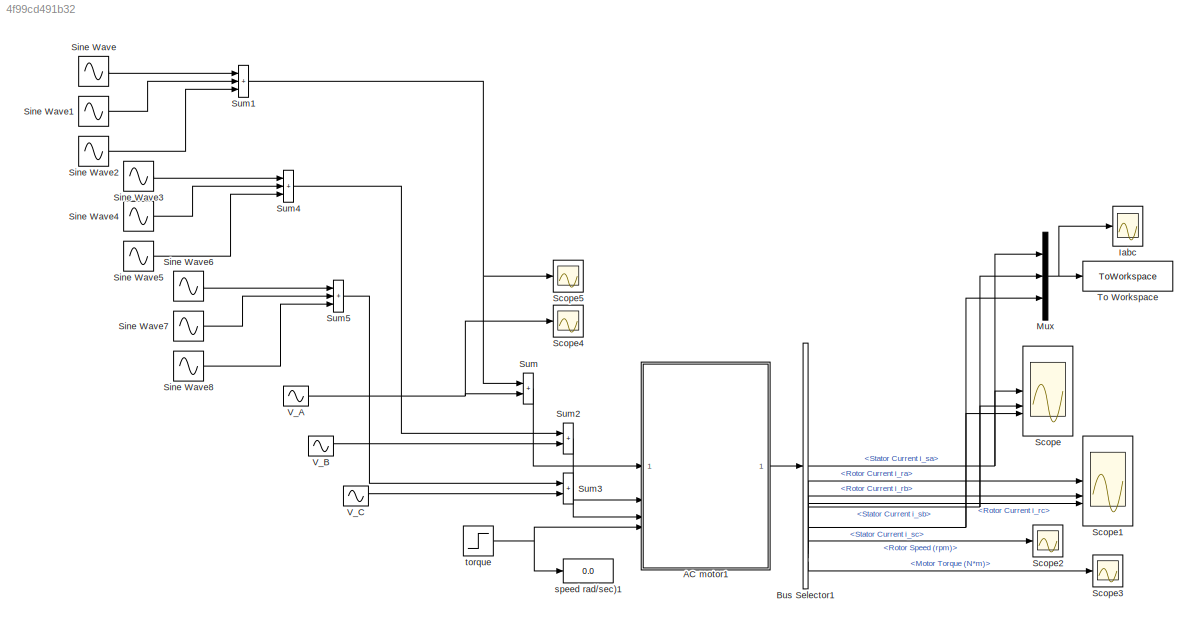
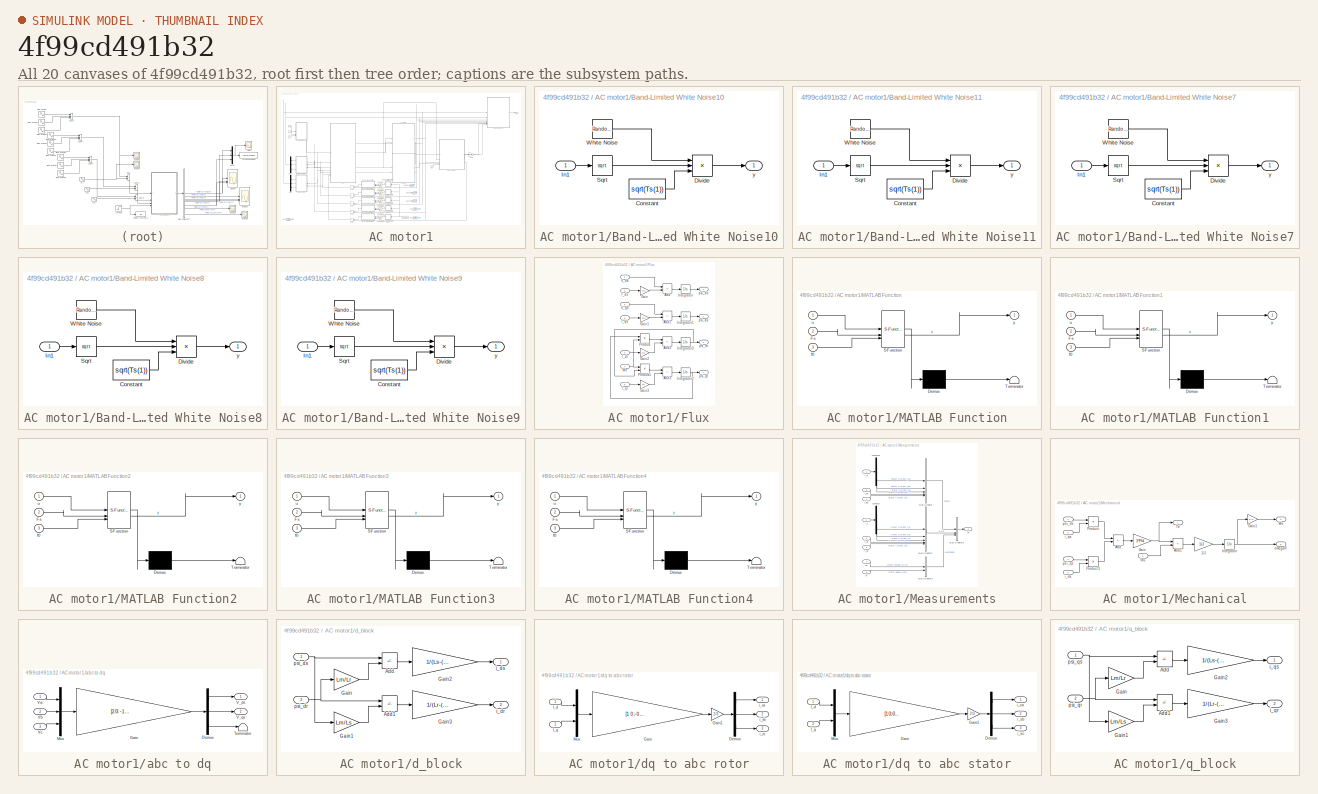
[diagram: thumbnail index - all 20 canvases of the model, root first then tree order]
MODEL slx_4f99cd491b32
KIND model
CONFIG AbsTol = auto
CONFIG EnableMultiTasking = on
CONFIG FixedStep = Ts
CONFIG MaxStep = auto
CONFIG MinStep = auto
CONFIG RelTol = 1e-3
CONFIG SampleTimeConstraint = Unconstrained
CONFIG SolverName = FixedStepAuto
CONFIG StartTime = 0.0
CONFIG StopTime = Tsimulation
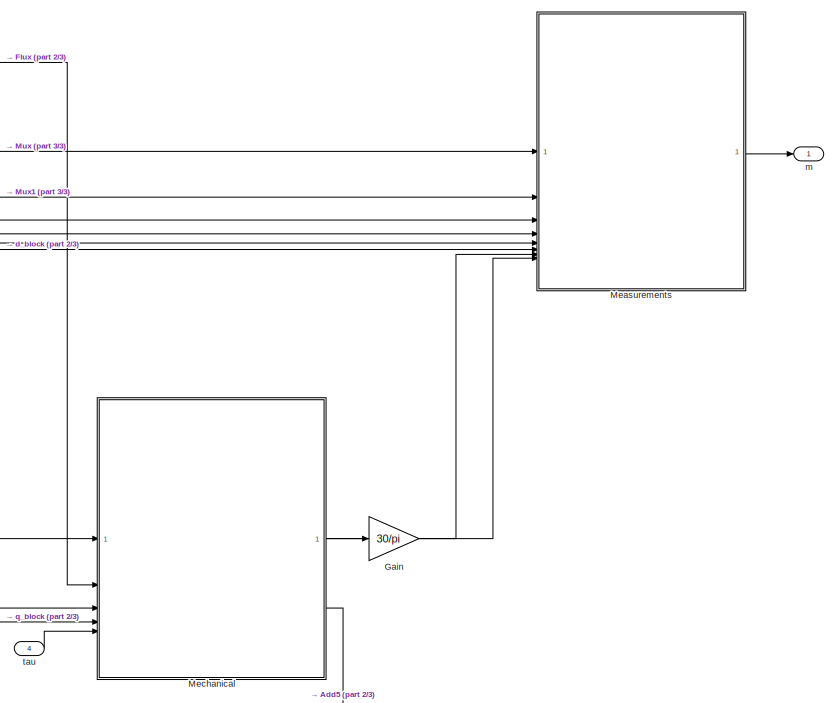
[diagram: AC motor1 - part 1/3, top right region]
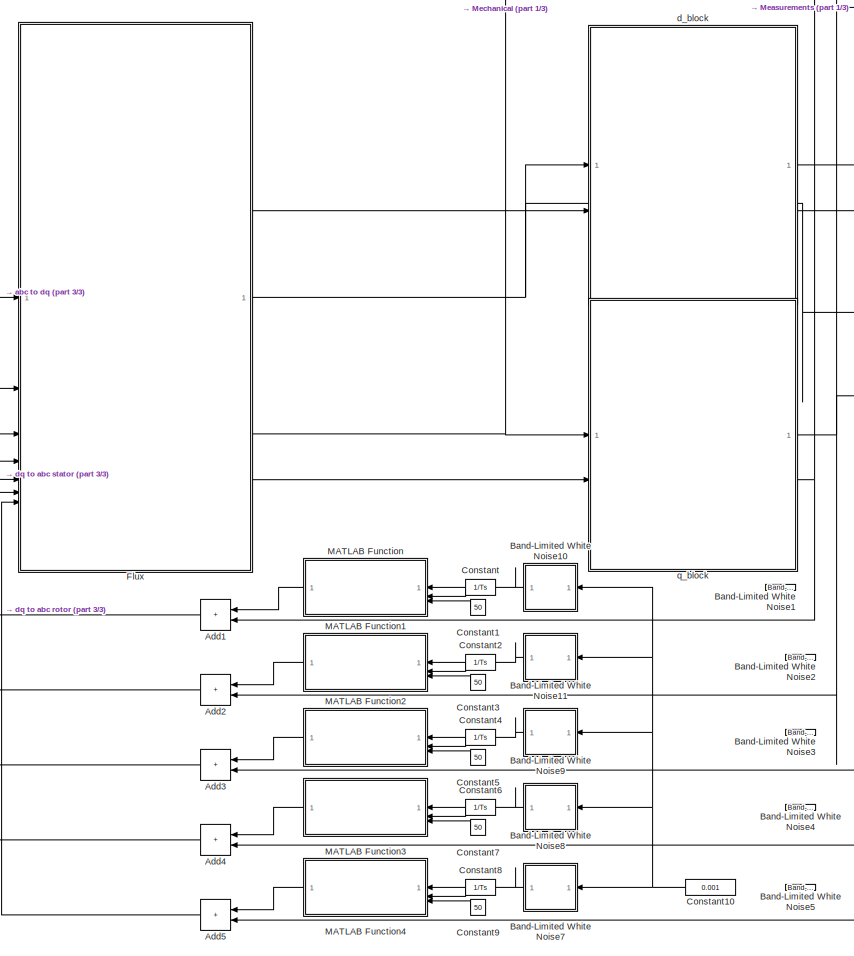
[diagram: AC motor1 - part 2/3, center side, full height]
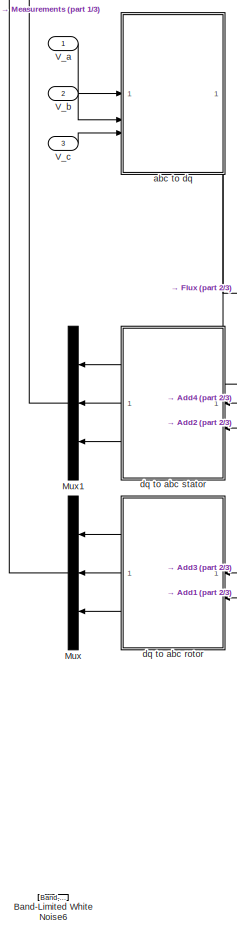
[diagram: AC motor1 - part 3/3, left side, full height]
BLOCK [SubSystem] AC motor1
BLOCK [Sum] AC motor1/Add1
  IconShape = rectangular
  NameLocation = top
BLOCK [Sum] AC motor1/Add2
  IconShape = rectangular
  NameLocation = top
BLOCK [Sum] AC motor1/Add3
  IconShape = rectangular
  NameLocation = top
BLOCK [Sum] AC motor1/Add4
  IconShape = rectangular
  NameLocation = top
BLOCK [Sum] AC motor1/Add5
  IconShape = rectangular
  NameLocation = top
BLOCK [Reference] AC motor1/Band-Limited White Noise1  REF=simulink/Sources/Band-Limited
White Noise
  Commented = on
  SourceBlock = simulink/Sources/Band-Limited\nWhite Noise
  SourceType = Band-Limited White Noise.
BLOCK [SubSystem] AC motor1/Band-Limited White Noise10
  NameLocation = top
BLOCK [Constant] AC motor1/Band-Limited White Noise10/Constant
  Value = sqrt(Ts(1))
BLOCK [Product] AC motor1/Band-Limited White Noise10/Divide
  Inputs = **/
BLOCK [Inport] AC motor1/Band-Limited White Noise10/In1
BLOCK [Sqrt] AC motor1/Band-Limited White Noise10/Sqrt
BLOCK [RandomNumber] AC motor1/Band-Limited White Noise10/White Noise
  DisableCoverage = on
  SampleTime = Ts
  Seed = seed
BLOCK [Outport] AC motor1/Band-Limited White Noise10/y
BLOCK [SubSystem] AC motor1/Band-Limited White Noise11
  NameLocation = top
BLOCK [Constant] AC motor1/Band-Limited White Noise11/Constant
  Value = sqrt(Ts(1))
BLOCK [Product] AC motor1/Band-Limited White Noise11/Divide
  Inputs = **/
BLOCK [Inport] AC motor1/Band-Limited White Noise11/In1
BLOCK [Sqrt] AC motor1/Band-Limited White Noise11/Sqrt
BLOCK [RandomNumber] AC motor1/Band-Limited White Noise11/White Noise
  DisableCoverage = on
  SampleTime = Ts
  Seed = seed
BLOCK [Outport] AC motor1/Band-Limited White Noise11/y
BLOCK [Reference] AC motor1/Band-Limited White Noise2  REF=simulink/Sources/Band-Limited
White Noise
  Commented = on
  SourceBlock = simulink/Sources/Band-Limited\nWhite Noise
  SourceType = Band-Limited White Noise.
BLOCK [Reference] AC motor1/Band-Limited White Noise3  REF=simulink/Sources/Band-Limited
White Noise
  Commented = on
  SourceBlock = simulink/Sources/Band-Limited\nWhite Noise
  SourceType = Band-Limited White Noise.
BLOCK [Reference] AC motor1/Band-Limited White Noise4  REF=simulink/Sources/Band-Limited
White Noise
  Commented = on
  SourceBlock = simulink/Sources/Band-Limited\nWhite Noise
  SourceType = Band-Limited White Noise.
BLOCK [Reference] AC motor1/Band-Limited White Noise5  REF=simulink/Sources/Band-Limited
White Noise
  Commented = on
  SourceBlock = simulink/Sources/Band-Limited\nWhite Noise
  SourceType = Band-Limited White Noise.
BLOCK [Reference] AC motor1/Band-Limited White Noise6  REF=simulink/Sources/Band-Limited
White Noise
  Commented = on
  SourceBlock = simulink/Sources/Band-Limited\nWhite Noise
  SourceType = Band-Limited White Noise.
BLOCK [SubSystem] AC motor1/Band-Limited White Noise7
  NameLocation = top
BLOCK [Constant] AC motor1/Band-Limited White Noise7/Constant
  Value = sqrt(Ts(1))
BLOCK [Product] AC motor1/Band-Limited White Noise7/Divide
  Inputs = **/
BLOCK [Inport] AC motor1/Band-Limited White Noise7/In1
BLOCK [Sqrt] AC motor1/Band-Limited White Noise7/Sqrt
BLOCK [RandomNumber] AC motor1/Band-Limited White Noise7/White Noise
  DisableCoverage = on
  SampleTime = Ts
  Seed = seed
BLOCK [Outport] AC motor1/Band-Limited White Noise7/y
BLOCK [SubSystem] AC motor1/Band-Limited White Noise8
  NameLocation = top
BLOCK [Constant] AC motor1/Band-Limited White Noise8/Constant
  Value = sqrt(Ts(1))
BLOCK [Product] AC motor1/Band-Limited White Noise8/Divide
  Inputs = **/
BLOCK [Inport] AC motor1/Band-Limited White Noise8/In1
BLOCK [Sqrt] AC motor1/Band-Limited White Noise8/Sqrt
BLOCK [RandomNumber] AC motor1/Band-Limited White Noise8/White Noise
  DisableCoverage = on
  SampleTime = Ts
  Seed = seed
BLOCK [Outport] AC motor1/Band-Limited White Noise8/y
BLOCK [SubSystem] AC motor1/Band-Limited White Noise9
  NameLocation = top
BLOCK [Constant] AC motor1/Band-Limited White Noise9/Constant
  Value = sqrt(Ts(1))
BLOCK [Product] AC motor1/Band-Limited White Noise9/Divide
  Inputs = **/
BLOCK [Inport] AC motor1/Band-Limited White Noise9/In1
BLOCK [Sqrt] AC motor1/Band-Limited White Noise9/Sqrt
BLOCK [RandomNumber] AC motor1/Band-Limited White Noise9/White Noise
  DisableCoverage = on
  SampleTime = Ts
  Seed = seed
BLOCK [Outport] AC motor1/Band-Limited White Noise9/y
BLOCK [Constant] AC motor1/Constant
  NameLocation = top
  Value = 1/Ts
BLOCK [Constant] AC motor1/Constant1
  NameLocation = top
  Value = 50
BLOCK [Constant] AC motor1/Constant10
  NameLocation = top
  Value = 0.001
BLOCK [Constant] AC motor1/Constant2
  NameLocation = top
  Value = 1/Ts
BLOCK [Constant] AC motor1/Constant3
  NameLocation = top
  Value = 50
BLOCK [Constant] AC motor1/Constant4
  NameLocation = top
  Value = 1/Ts
BLOCK [Constant] AC motor1/Constant5
  NameLocation = top
  Value = 50
BLOCK [Constant] AC motor1/Constant6
  NameLocation = top
  Value = 1/Ts
BLOCK [Constant] AC motor1/Constant7
  NameLocation = top
  Value = 50
BLOCK [Constant] AC motor1/Constant8
  NameLocation = top
  Value = 1/Ts
BLOCK [Constant] AC motor1/Constant9
  NameLocation = top
  Value = 50
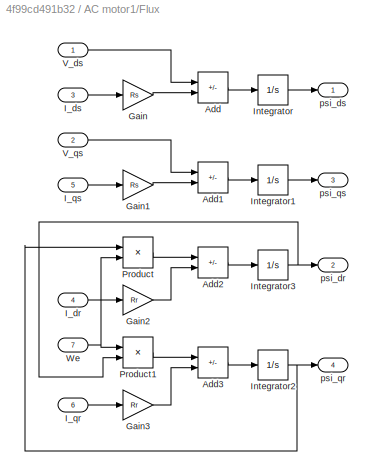
BLOCK [SubSystem] AC motor1/Flux
BLOCK [Sum] AC motor1/Flux/Add
  IconShape = rectangular
  Inputs = +-
BLOCK [Sum] AC motor1/Flux/Add1
  IconShape = rectangular
  Inputs = +-
BLOCK [Sum] AC motor1/Flux/Add2
  IconShape = rectangular
  Inputs = --
BLOCK [Sum] AC motor1/Flux/Add3
  IconShape = rectangular
  Inputs = +-
BLOCK [Gain] AC motor1/Flux/Gain
  Gain = Rs
BLOCK [Gain] AC motor1/Flux/Gain1
  Gain = Rs
BLOCK [Gain] AC motor1/Flux/Gain2
  Gain = Rr
BLOCK [Gain] AC motor1/Flux/Gain3
  Gain = Rr
BLOCK [Inport] AC motor1/Flux/I_dr
  Port = 4
BLOCK [Inport] AC motor1/Flux/I_ds
  Port = 3
BLOCK [Inport] AC motor1/Flux/I_qr
  Port = 6
BLOCK [Inport] AC motor1/Flux/I_qs
  Port = 5
BLOCK [Integrator] AC motor1/Flux/Integrator
BLOCK [Integrator] AC motor1/Flux/Integrator1
BLOCK [Integrator] AC motor1/Flux/Integrator2
BLOCK [Integrator] AC motor1/Flux/Integrator3
BLOCK [Product] AC motor1/Flux/Product
BLOCK [Product] AC motor1/Flux/Product1
BLOCK [Inport] AC motor1/Flux/V_ds
BLOCK [Inport] AC motor1/Flux/V_qs
  Port = 2
BLOCK [Inport] AC motor1/Flux/We
  Port = 7
BLOCK [Outport] AC motor1/Flux/psi_dr
  Port = 2
BLOCK [Outport] AC motor1/Flux/psi_ds
BLOCK [Outport] AC motor1/Flux/psi_qr
  Port = 4
BLOCK [Outport] AC motor1/Flux/psi_qs
  Port = 3
BLOCK [Gain] AC motor1/Gain
  Gain = 30/pi
BLOCK [SubSystem] AC motor1/MATLAB Function
  ErrorFcn = Stateflow.Translate.translate
  NameLocation = top
  PermitHierarchicalResolution = ExplicitOnly
  SFBlockType = MATLAB Function
  TreatAsAtomicUnit = on
BLOCK [Demux] AC motor1/MATLAB Function/ Demux 
  Outputs = 1
BLOCK [S-Function] AC motor1/MATLAB Function/ SFunction 
  EnableBusSupport = on
  FunctionName = sf_sfun
  PortCounts = [3 2]
  SFcnIsStateOwnerBlock = off
  SFunctionDeploymentMode = off
  Tag = Stateflow S-Function 2
BLOCK [Terminator] AC motor1/MATLAB Function/ Terminator 
BLOCK [Inport] AC motor1/MATLAB Function/Fs
  Port = 2
BLOCK [Inport] AC motor1/MATLAB Function/f0
  Port = 3
BLOCK [Inport] AC motor1/MATLAB Function/u
BLOCK [Outport] AC motor1/MATLAB Function/y
BLOCK [SubSystem] AC motor1/MATLAB Function1
  ErrorFcn = Stateflow.Translate.translate
  NameLocation = top
  PermitHierarchicalResolution = ExplicitOnly
  SFBlockType = MATLAB Function
  TreatAsAtomicUnit = on
BLOCK [Demux] AC motor1/MATLAB Function1/ Demux 
  Outputs = 1
BLOCK [S-Function] AC motor1/MATLAB Function1/ SFunction 
  EnableBusSupport = on
  FunctionName = sf_sfun
  PortCounts = [3 2]
  SFcnIsStateOwnerBlock = off
  SFunctionDeploymentMode = off
  Tag = Stateflow S-Function 1
BLOCK [Terminator] AC motor1/MATLAB Function1/ Terminator 
BLOCK [Inport] AC motor1/MATLAB Function1/Fs
  Port = 2
BLOCK [Inport] AC motor1/MATLAB Function1/f0
  Port = 3
BLOCK [Inport] AC motor1/MATLAB Function1/u
BLOCK [Outport] AC motor1/MATLAB Function1/y
BLOCK [SubSystem] AC motor1/MATLAB Function2
  ErrorFcn = Stateflow.Translate.translate
  NameLocation = top
  PermitHierarchicalResolution = ExplicitOnly
  SFBlockType = MATLAB Function
  TreatAsAtomicUnit = on
BLOCK [Demux] AC motor1/MATLAB Function2/ Demux 
  Outputs = 1
BLOCK [S-Function] AC motor1/MATLAB Function2/ SFunction 
  EnableBusSupport = on
  FunctionName = sf_sfun
  PortCounts = [3 2]
  SFcnIsStateOwnerBlock = off
  SFunctionDeploymentMode = off
  Tag = Stateflow S-Function 3
BLOCK [Terminator] AC motor1/MATLAB Function2/ Terminator 
BLOCK [Inport] AC motor1/MATLAB Function2/Fs
  Port = 2
BLOCK [Inport] AC motor1/MATLAB Function2/f0
  Port = 3
BLOCK [Inport] AC motor1/MATLAB Function2/u
BLOCK [Outport] AC motor1/MATLAB Function2/y
BLOCK [SubSystem] AC motor1/MATLAB Function3
  ErrorFcn = Stateflow.Translate.translate
  NameLocation = top
  PermitHierarchicalResolution = ExplicitOnly
  SFBlockType = MATLAB Function
  TreatAsAtomicUnit = on
BLOCK [Demux] AC motor1/MATLAB Function3/ Demux 
  Outputs = 1
BLOCK [S-Function] AC motor1/MATLAB Function3/ SFunction 
  EnableBusSupport = on
  FunctionName = sf_sfun
  PortCounts = [3 2]
  SFcnIsStateOwnerBlock = off
  SFunctionDeploymentMode = off
  Tag = Stateflow S-Function 4
BLOCK [Terminator] AC motor1/MATLAB Function3/ Terminator 
BLOCK [Inport] AC motor1/MATLAB Function3/Fs
  Port = 2
BLOCK [Inport] AC motor1/MATLAB Function3/f0
  Port = 3
BLOCK [Inport] AC motor1/MATLAB Function3/u
BLOCK [Outport] AC motor1/MATLAB Function3/y
BLOCK [SubSystem] AC motor1/MATLAB Function4
  ErrorFcn = Stateflow.Translate.translate
  NameLocation = top
  PermitHierarchicalResolution = ExplicitOnly
  SFBlockType = MATLAB Function
  TreatAsAtomicUnit = on
BLOCK [Demux] AC motor1/MATLAB Function4/ Demux 
  Outputs = 1
BLOCK [S-Function] AC motor1/MATLAB Function4/ SFunction 
  EnableBusSupport = on
  FunctionName = sf_sfun
  PortCounts = [3 2]
  SFcnIsStateOwnerBlock = off
  SFunctionDeploymentMode = off
  Tag = Stateflow S-Function 5
BLOCK [Terminator] AC motor1/MATLAB Function4/ Terminator 
BLOCK [Inport] AC motor1/MATLAB Function4/Fs
  Port = 2
BLOCK [Inport] AC motor1/MATLAB Function4/f0
  Port = 3
BLOCK [Inport] AC motor1/MATLAB Function4/u
BLOCK [Outport] AC motor1/MATLAB Function4/y
BLOCK [SubSystem] AC motor1/Measurements
BLOCK [BusCreator] AC motor1/Measurements/Bus Creator
  DisplayOption = bar
  InheritFromInputs = on
  Inputs = 5
BLOCK [BusCreator] AC motor1/Measurements/Bus Creator1
  DisplayOption = bar
  InheritFromInputs = on
  Inputs = 5
BLOCK [BusCreator] AC motor1/Measurements/Bus Creator2
  DisplayOption = bar
  InheritFromInputs = on
  Inputs = 2
BLOCK [BusCreator] AC motor1/Measurements/Bus Creator3
  DisplayOption = bar
  InheritFromInputs = on
  Inputs = 3
BLOCK [Demux] AC motor1/Measurements/Demux
  Outputs = 3
BLOCK [Demux] AC motor1/Measurements/Demux1
  Outputs = 3
BLOCK [Inport] AC motor1/Measurements/I_dr
  Port = 5
BLOCK [Inport] AC motor1/Measurements/I_ds
  Port = 6
BLOCK [Inport] AC motor1/Measurements/I_qr
  Port = 3
BLOCK [Inport] AC motor1/Measurements/I_qs
  Port = 4
BLOCK [Inport] AC motor1/Measurements/I_r
BLOCK [Inport] AC motor1/Measurements/I_s
  Port = 2
BLOCK [Inport] AC motor1/Measurements/N
  Port = 8
BLOCK [Inport] AC motor1/Measurements/Te
  Port = 7
BLOCK [Outport] AC motor1/Measurements/m
BLOCK [SubSystem] AC motor1/Mechanical
BLOCK [Gain] AC motor1/Mechanical/1//J
  Gain = 1/J
BLOCK [Sum] AC motor1/Mechanical/Add
  IconShape = rectangular
  Inputs = +-
BLOCK [Sum] AC motor1/Mechanical/Add1
  IconShape = rectangular
  Inputs = +-
BLOCK [Gain] AC motor1/Mechanical/Gain
  Gain = 3*P/4
BLOCK [Gain] AC motor1/Mechanical/Gain1
  Gain = P/2
BLOCK [Integrator] AC motor1/Mechanical/Integrator
BLOCK [Product] AC motor1/Mechanical/Product
BLOCK [Product] AC motor1/Mechanical/Product1
BLOCK [Outport] AC motor1/Mechanical/Te
BLOCK [Outport] AC motor1/Mechanical/We
  Port = 3
BLOCK [Inport] AC motor1/Mechanical/i_ds
  Port = 3
BLOCK [Inport] AC motor1/Mechanical/i_qs
  Port = 4
BLOCK [Outport] AC motor1/Mechanical/omegaR
  Port = 2
BLOCK [Inport] AC motor1/Mechanical/psi_ds
BLOCK [Inport] AC motor1/Mechanical/psi_qs
  Port = 2
BLOCK [Inport] AC motor1/Mechanical/tau
  Port = 5
BLOCK [Mux] AC motor1/Mux
  DisplayOption = bar
  Inputs = 3
  NameLocation = top
BLOCK [Mux] AC motor1/Mux1
  DisplayOption = bar
  Inputs = 3
  NameLocation = top
BLOCK [Inport] AC motor1/V_a
BLOCK [Inport] AC motor1/V_b
  Port = 2
BLOCK [Inport] AC motor1/V_c
  Port = 3
BLOCK [SubSystem] AC motor1/abc to dq
BLOCK [Demux] AC motor1/abc to dq/Demux
  Outputs = 3
BLOCK [Gain] AC motor1/abc to dq/Gain
  Gain = [2/3 -1/3 -1/3; 0 sqrt(3)/3 -sqrt(3)/3; 1/3 1/3 1/3]
  Multiplication = Matrix(K*u)
BLOCK [Mux] AC motor1/abc to dq/Mux
  DisplayOption = bar
  Inputs = 3
BLOCK [Terminator] AC motor1/abc to dq/Terminator
BLOCK [Outport] AC motor1/abc to dq/V_ds
BLOCK [Outport] AC motor1/abc to dq/V_qs
  Port = 2
BLOCK [Inport] AC motor1/abc to dq/Va
BLOCK [Inport] AC motor1/abc to dq/Vb
  Port = 2
BLOCK [Inport] AC motor1/abc to dq/Vc
  Port = 3
BLOCK [SubSystem] AC motor1/d_block
BLOCK [Sum] AC motor1/d_block/Add
  IconShape = rectangular
  Inputs = +-
BLOCK [Sum] AC motor1/d_block/Add1
  IconShape = rectangular
  Inputs = +-
BLOCK [Gain] AC motor1/d_block/Gain
  Gain = Lm/Lr
BLOCK [Gain] AC motor1/d_block/Gain1
  Gain = Lm/Ls
BLOCK [Gain] AC motor1/d_block/Gain2
  Gain = 1/(Ls-((Lm*Lm)/Lr))
BLOCK [Gain] AC motor1/d_block/Gain3
  Gain = 1/(Lr-((Lm*Lm)/Ls))
BLOCK [Outport] AC motor1/d_block/i_dr
  Port = 2
BLOCK [Outport] AC motor1/d_block/i_ds
BLOCK [Inport] AC motor1/d_block/psi_dr
  Port = 2
BLOCK [Inport] AC motor1/d_block/psi_ds
BLOCK [SubSystem] AC motor1/dq to abc rotor
BLOCK [Demux] AC motor1/dq to abc rotor/Demux
  Outputs = 3
BLOCK [Gain] AC motor1/dq to abc rotor/Gain
  Gain = [1 0;-0.5 -sqrt(3)/2;-0.5 sqrt(3)/2]
  Multiplication = Matrix(K*u)
BLOCK [Gain] AC motor1/dq to abc rotor/Gain1
  Gain = 2/3
BLOCK [Inport] AC motor1/dq to abc rotor/I_d
BLOCK [Inport] AC motor1/dq to abc rotor/I_q
  Port = 2
BLOCK [Mux] AC motor1/dq to abc rotor/Mux
  DisplayOption = bar
  Inputs = 2
BLOCK [Outport] AC motor1/dq to abc rotor/i_ra
BLOCK [Outport] AC motor1/dq to abc rotor/i_rb
  Port = 2
BLOCK [Outport] AC motor1/dq to abc rotor/i_rc
  Port = 3
BLOCK [SubSystem] AC motor1/dq to abc stator
BLOCK [Demux] AC motor1/dq to abc stator/Demux
  Outputs = 3
BLOCK [Gain] AC motor1/dq to abc stator/Gain
  Gain = [1 0;-0.5 -sqrt(3)/2;-0.5 sqrt(3)/2]
  Multiplication = Matrix(K*u)
BLOCK [Gain] AC motor1/dq to abc stator/Gain1
  Gain = 2/3
BLOCK [Inport] AC motor1/dq to abc stator/I_d
BLOCK [Inport] AC motor1/dq to abc stator/I_q
  Port = 2
BLOCK [Mux] AC motor1/dq to abc stator/Mux
  DisplayOption = bar
  Inputs = 2
BLOCK [Outport] AC motor1/dq to abc stator/i_sa
BLOCK [Outport] AC motor1/dq to abc stator/i_sb
  Port = 2
BLOCK [Outport] AC motor1/dq to abc stator/i_sc
  Port = 3
BLOCK [Outport] AC motor1/m
BLOCK [SubSystem] AC motor1/q_block
BLOCK [Sum] AC motor1/q_block/Add
  IconShape = rectangular
  Inputs = +-
BLOCK [Sum] AC motor1/q_block/Add1
  IconShape = rectangular
  Inputs = +-
BLOCK [Gain] AC motor1/q_block/Gain
  Gain = Lm/Lr
BLOCK [Gain] AC motor1/q_block/Gain1
  Gain = Lm/Ls
BLOCK [Gain] AC motor1/q_block/Gain2
  Gain = 1/(Ls-((Lm*Lm)/Lr))
BLOCK [Gain] AC motor1/q_block/Gain3
  Gain = 1/(Lr-((Lm*Lm)/Ls))
BLOCK [Outport] AC motor1/q_block/i_qr
  Port = 2
BLOCK [Outport] AC motor1/q_block/i_qs
BLOCK [Inport] AC motor1/q_block/psi_qr
  Port = 2
BLOCK [Inport] AC motor1/q_block/psi_qs
BLOCK [Inport] AC motor1/tau
  Port = 4
BLOCK [BusSelector] Bus Selector1
  OutputSignals = Stator.Stator Current i_sa,Stator.Stator Current i_sb,Stator.Stator Current i_sc,Rotor.Rotor Current i_ra,Rotor.Rotor Current i_rb,Rotor.Rotor Current i_rc,Mechanical.Rotor Speed (rpm),Mechanical.Motor Torque (N*m)
BLOCK [Scope] Iabc
  Commented = on
  Floating = off
  NumInputPorts = 1
  ScopeSpecificationString = Simulink.scopes.TimeScopeBlockCfg('CurrentConfiguration', extmgr.ConfigurationSet(extmgr.Configuration('Core','General UI',true,'FigureColor',[1 1 1]),extmgr.Configuration('Core','Source UI',true),extmgr.Configuration('Sources','WiredSimulink',true),extmgr.Configuration('Visuals','Time Domain',true,'SerializedDisplays',{struct('MinYLimReal','-9.62281','MaxYLimReal','8.3796','YLabelReal','','MinYLi...<+3094ch>
BLOCK [Mux] Mux
  DisplayOption = bar
  Inputs = 3
BLOCK [Scope] Scope
  Floating = off
  NumInputPorts = 3
  ScopeSpecificationString = Simulink.scopes.TimeScopeBlockCfg('CurrentConfiguration', extmgr.ConfigurationSet(extmgr.Configuration('Core','General UI',true),extmgr.Configuration('Core','Source UI',true),extmgr.Configuration('Sources','WiredSimulink',true,'DataLoggingVariableName','ScopeData6'),extmgr.Configuration('Visuals','Time Domain',true,'SerializedDisplays',{struct('MinYLimReal','-8.16644','MaxYLimReal','4.14638','YLab...<+1828ch>
BLOCK [Scope] Scope1
  Floating = off
  NumInputPorts = 3
  ScopeSpecificationString = Simulink.scopes.TimeScopeBlockCfg('CurrentConfiguration', extmgr.ConfigurationSet(extmgr.Configuration('Core','General UI',true),extmgr.Configuration('Core','Source UI',true),extmgr.Configuration('Sources','WiredSimulink',true,'DataLoggingVariableName','ScopeData7'),extmgr.Configuration('Visuals','Time Domain',true,'SerializedDisplays',{struct('MinYLimReal','-43.22534','MaxYLimReal','42.16559','YL...<+1970ch>
BLOCK [Scope] Scope2
  Floating = off
  NumInputPorts = 1
  ScopeSpecificationString = Simulink.scopes.TimeScopeBlockCfg('CurrentConfiguration', extmgr.ConfigurationSet(extmgr.Configuration('Core','General UI',true),extmgr.Configuration('Core','Source UI',true),extmgr.Configuration('Sources','WiredSimulink',true,'DataLoggingVariableName','ScopeData8'),extmgr.Configuration('Visuals','Time Domain',true,'SerializedDisplays',{struct('MinYLimReal','-188.37629','MaxYLimReal','1695.3866','...<+1492ch>
BLOCK [Scope] Scope3
  Floating = off
  NumInputPorts = 1
  ScopeSpecificationString = Simulink.scopes.TimeScopeBlockCfg('CurrentConfiguration', extmgr.ConfigurationSet(extmgr.Configuration('Core','General UI',true),extmgr.Configuration('Core','Source UI',true),extmgr.Configuration('Sources','WiredSimulink',true,'DataLoggingVariableName','ScopeData9'),extmgr.Configuration('Visuals','Time Domain',true,'SerializedDisplays',{struct('MinYLimReal','-10.04352','MaxYLimReal','45.59944','YL...<+1509ch>
BLOCK [Scope] Scope4
  Commented = on
  Floating = off
  NumInputPorts = 1
  ScopeSpecificationString = Simulink.scopes.TimeScopeBlockCfg('CurrentConfiguration', extmgr.ConfigurationSet(extmgr.Configuration('Core','General UI',true),extmgr.Configuration('Core','Source UI',true),extmgr.Configuration('Sources','WiredSimulink',true,'DataLoggingVariableName','ScopeData1'),extmgr.Configuration('Visuals','Time Domain',true,'SerializedDisplays',{struct('MinYLimReal','-274.24138','MaxYLimReal','274.24138','...<+1465ch>
BLOCK [Scope] Scope5
  Floating = off
  NumInputPorts = 1
  ScopeSpecificationString = Simulink.scopes.TimeScopeBlockCfg('CurrentConfiguration', extmgr.ConfigurationSet(extmgr.Configuration('Core','General UI',true),extmgr.Configuration('Core','Source UI',true),extmgr.Configuration('Sources','WiredSimulink',true,'DataLoggingVariableName','ScopeData2'),extmgr.Configuration('Visuals','Time Domain',true,'SerializedDisplays',{struct('MinYLimReal','-18.33573','MaxYLimReal','18.33573','YL...<+1535ch>
BLOCK [Sin] Sine Wave
  Amplitude = Vph*0
  Frequency = 2*pi*100
  SampleTime = Ts
BLOCK [Sin] Sine Wave1
  Amplitude = Vph*0.025
  Frequency = 2*pi*150
  SampleTime = Ts
BLOCK [Sin] Sine Wave2
  Amplitude = Vph*0.01
  Frequency = 2*pi*250
  SampleTime = Ts
BLOCK [Sin] Sine Wave3
  Amplitude = Vph*0
  Frequency = 2*pi*100
  Phase = -2*pi/3
  SampleTime = Ts
BLOCK [Sin] Sine Wave4
  Amplitude = Vph*0.025
  Frequency = 2*pi*150
  Phase = -2*pi/3
  SampleTime = Ts
BLOCK [Sin] Sine Wave5
  Amplitude = Vph*0.01
  Frequency = 2*pi*250
  Phase = -2*pi/3
  SampleTime = Ts
BLOCK [Sin] Sine Wave6
  Amplitude = Vph*0
  Frequency = 2*pi*100
  Phase = 2*pi/3
  SampleTime = Ts
BLOCK [Sin] Sine Wave7
  Amplitude = Vph*0.025
  Frequency = 2*pi*150
  Phase = 2*pi/3
  SampleTime = Ts
BLOCK [Sin] Sine Wave8
  Amplitude = Vph*0.01
  Frequency = 2*pi*250
  Phase = 2*pi/3
  SampleTime = Ts
BLOCK [Sum] Sum
  IconShape = rectangular
BLOCK [Sum] Sum1
  IconShape = rectangular
  Inputs = +++
BLOCK [Sum] Sum2
  IconShape = rectangular
BLOCK [Sum] Sum3
  IconShape = rectangular
BLOCK [Sum] Sum4
  IconShape = rectangular
  Inputs = +++
BLOCK [Sum] Sum5
  IconShape = rectangular
  Inputs = +++
BLOCK [ToWorkspace] To Workspace
  FixptAsFi = on
  MaxDataPoints = inf
  SampleTime = Tswrite
  SaveFormat = Structure With Time
  VariableName = I_out_curr
BLOCK [Sin] V_A
  Amplitude = Vph
  Frequency = 2*pi*fb
  SampleTime = Ts
BLOCK [Sin] V_B
  Amplitude = Vph
  Frequency = 2*pi*fb
  Phase = -2*pi/3
  SampleTime = Ts
BLOCK [Sin] V_C
  Amplitude = Vph
  Frequency = 2*pi*fb
  Phase = 2*pi/3
  SampleTime = Ts
BLOCK [Display] speed rad//sec)1
  Commented = on
  Decimation = 1
  NameLocation = top
BLOCK [Step] torque
  After = 2.3
  SampleTime = 0
  Time = 2
NET AC motor1/Add1:1 -> AC motor1/Flux:6, AC motor1/dq to abc rotor:2
NET AC motor1/Add2:1 -> AC motor1/Flux:5, AC motor1/dq to abc stator:2
NET AC motor1/Add3:1 -> AC motor1/Flux:4, AC motor1/dq to abc rotor:1
NET AC motor1/Add4:1 -> AC motor1/Flux:3, AC motor1/dq to abc stator:1
LINE AC motor1/Add5:1 -> AC motor1/Flux:7
LINE AC motor1/Band-Limited White Noise10/Constant:1 -> AC motor1/Band-Limited White Noise10/Divide:3
LINE AC motor1/Band-Limited White Noise10/Divide:1 -> AC motor1/Band-Limited White Noise10/y:1
LINE AC motor1/Band-Limited White Noise10/In1:1 -> AC motor1/Band-Limited White Noise10/Sqrt:1
LINE AC motor1/Band-Limited White Noise10/Sqrt:1 -> AC motor1/Band-Limited White Noise10/Divide:2
LINE AC motor1/Band-Limited White Noise10/White Noise:1 -> AC motor1/Band-Limited White Noise10/Divide:1
LINE AC motor1/Band-Limited White Noise10:1 -> AC motor1/MATLAB Function:1
LINE AC motor1/Band-Limited White Noise11/Constant:1 -> AC motor1/Band-Limited White Noise11/Divide:3
LINE AC motor1/Band-Limited White Noise11/Divide:1 -> AC motor1/Band-Limited White Noise11/y:1
LINE AC motor1/Band-Limited White Noise11/In1:1 -> AC motor1/Band-Limited White Noise11/Sqrt:1
LINE AC motor1/Band-Limited White Noise11/Sqrt:1 -> AC motor1/Band-Limited White Noise11/Divide:2
LINE AC motor1/Band-Limited White Noise11/White Noise:1 -> AC motor1/Band-Limited White Noise11/Divide:1
LINE AC motor1/Band-Limited White Noise11:1 -> AC motor1/MATLAB Function1:1
LINE AC motor1/Band-Limited White Noise7/Constant:1 -> AC motor1/Band-Limited White Noise7/Divide:3
LINE AC motor1/Band-Limited White Noise7/Divide:1 -> AC motor1/Band-Limited White Noise7/y:1
LINE AC motor1/Band-Limited White Noise7/In1:1 -> AC motor1/Band-Limited White Noise7/Sqrt:1
LINE AC motor1/Band-Limited White Noise7/Sqrt:1 -> AC motor1/Band-Limited White Noise7/Divide:2
LINE AC motor1/Band-Limited White Noise7/White Noise:1 -> AC motor1/Band-Limited White Noise7/Divide:1
LINE AC motor1/Band-Limited White Noise7:1 -> AC motor1/MATLAB Function4:1
LINE AC motor1/Band-Limited White Noise8/Constant:1 -> AC motor1/Band-Limited White Noise8/Divide:3
LINE AC motor1/Band-Limited White Noise8/Divide:1 -> AC motor1/Band-Limited White Noise8/y:1
LINE AC motor1/Band-Limited White Noise8/In1:1 -> AC motor1/Band-Limited White Noise8/Sqrt:1
LINE AC motor1/Band-Limited White Noise8/Sqrt:1 -> AC motor1/Band-Limited White Noise8/Divide:2
LINE AC motor1/Band-Limited White Noise8/White Noise:1 -> AC motor1/Band-Limited White Noise8/Divide:1
LINE AC motor1/Band-Limited White Noise8:1 -> AC motor1/MATLAB Function3:1
LINE AC motor1/Band-Limited White Noise9/Constant:1 -> AC motor1/Band-Limited White Noise9/Divide:3
LINE AC motor1/Band-Limited White Noise9/Divide:1 -> AC motor1/Band-Limited White Noise9/y:1
LINE AC motor1/Band-Limited White Noise9/In1:1 -> AC motor1/Band-Limited White Noise9/Sqrt:1
LINE AC motor1/Band-Limited White Noise9/Sqrt:1 -> AC motor1/Band-Limited White Noise9/Divide:2
LINE AC motor1/Band-Limited White Noise9/White Noise:1 -> AC motor1/Band-Limited White Noise9/Divide:1
LINE AC motor1/Band-Limited White Noise9:1 -> AC motor1/MATLAB Function2:1
NET AC motor1/Constant10:1 -> AC motor1/Band-Limited White Noise10:1, AC motor1/Band-Limited White Noise11:1, AC motor1/Band-Limited White Noise7:1, AC motor1/Band-Limited White Noise8:1, AC motor1/Band-Limited White Noise9:1
LINE AC motor1/Constant1:1 -> AC motor1/MATLAB Function:3
LINE AC motor1/Constant2:1 -> AC motor1/MATLAB Function1:2
LINE AC motor1/Constant3:1 -> AC motor1/MATLAB Function1:3
LINE AC motor1/Constant4:1 -> AC motor1/MATLAB Function2:2
LINE AC motor1/Constant5:1 -> AC motor1/MATLAB Function2:3
LINE AC motor1/Constant6:1 -> AC motor1/MATLAB Function3:2
LINE AC motor1/Constant7:1 -> AC motor1/MATLAB Function3:3
LINE AC motor1/Constant8:1 -> AC motor1/MATLAB Function4:2
LINE AC motor1/Constant9:1 -> AC motor1/MATLAB Function4:3
LINE AC motor1/Constant:1 -> AC motor1/MATLAB Function:2
LINE AC motor1/Flux/Add1:1 -> AC motor1/Flux/Integrator1:1
LINE AC motor1/Flux/Add2:1 -> AC motor1/Flux/Integrator3:1
LINE AC motor1/Flux/Add3:1 -> AC motor1/Flux/Integrator2:1
LINE AC motor1/Flux/Add:1 -> AC motor1/Flux/Integrator:1
LINE AC motor1/Flux/Gain1:1 -> AC motor1/Flux/Add1:2
LINE AC motor1/Flux/Gain2:1 -> AC motor1/Flux/Add2:2
LINE AC motor1/Flux/Gain3:1 -> AC motor1/Flux/Add3:2
LINE AC motor1/Flux/Gain:1 -> AC motor1/Flux/Add:2
LINE AC motor1/Flux/I_dr:1 -> AC motor1/Flux/Gain2:1
LINE AC motor1/Flux/I_ds:1 -> AC motor1/Flux/Gain:1
LINE AC motor1/Flux/I_qr:1 -> AC motor1/Flux/Gain3:1
LINE AC motor1/Flux/I_qs:1 -> AC motor1/Flux/Gain1:1
LINE AC motor1/Flux/Integrator1:1 -> AC motor1/Flux/psi_qs:1
NET AC motor1/Flux/Integrator2:1 -> AC motor1/Flux/Product:1, AC motor1/Flux/psi_qr:1
NET AC motor1/Flux/Integrator3:1 -> AC motor1/Flux/Product1:2, AC motor1/Flux/psi_dr:1
LINE AC motor1/Flux/Integrator:1 -> AC motor1/Flux/psi_ds:1
LINE AC motor1/Flux/Product1:1 -> AC motor1/Flux/Add3:1
LINE AC motor1/Flux/Product:1 -> AC motor1/Flux/Add2:1
LINE AC motor1/Flux/V_ds:1 -> AC motor1/Flux/Add:1
LINE AC motor1/Flux/V_qs:1 -> AC motor1/Flux/Add1:1
NET AC motor1/Flux/We:1 -> AC motor1/Flux/Product1:1, AC motor1/Flux/Product:2
NET AC motor1/Flux:1 -> AC motor1/Mechanical:1, AC motor1/d_block:1
LINE AC motor1/Flux:2 -> AC motor1/d_block:2
NET AC motor1/Flux:3 -> AC motor1/Mechanical:2, AC motor1/q_block:1
LINE AC motor1/Flux:4 -> AC motor1/q_block:2
LINE AC motor1/Gain:1 -> AC motor1/Measurements:8
LINE AC motor1/MATLAB Function1:1 -> AC motor1/Add2:1
LINE AC motor1/MATLAB Function2:1 -> AC motor1/Add3:1
LINE AC motor1/MATLAB Function3:1 -> AC motor1/Add4:1
LINE AC motor1/MATLAB Function4:1 -> AC motor1/Add5:1
LINE AC motor1/MATLAB Function:1 -> AC motor1/Add1:1
LINE AC motor1/Measurements/Bus Creator1:1 -> AC motor1/Measurements/Bus Creator3:2
LINE AC motor1/Measurements/Bus Creator2:1 -> AC motor1/Measurements/Bus Creator3:3
LINE AC motor1/Measurements/Bus Creator3:1 -> AC motor1/Measurements/m:1
LINE AC motor1/Measurements/Bus Creator:1 -> AC motor1/Measurements/Bus Creator3:1
LINE AC motor1/Measurements/Demux1:1 -> AC motor1/Measurements/Bus Creator:1
LINE AC motor1/Measurements/Demux1:2 -> AC motor1/Measurements/Bus Creator:2
LINE AC motor1/Measurements/Demux1:3 -> AC motor1/Measurements/Bus Creator:3
LINE AC motor1/Measurements/Demux:1 -> AC motor1/Measurements/Bus Creator1:1
LINE AC motor1/Measurements/Demux:2 -> AC motor1/Measurements/Bus Creator1:2
LINE AC motor1/Measurements/Demux:3 -> AC motor1/Measurements/Bus Creator1:3
LINE AC motor1/Measurements/I_dr:1 -> AC motor1/Measurements/Bus Creator1:4
LINE AC motor1/Measurements/I_ds:1 -> AC motor1/Measurements/Bus Creator:4
LINE AC motor1/Measurements/I_qr:1 -> AC motor1/Measurements/Bus Creator1:5
LINE AC motor1/Measurements/I_qs:1 -> AC motor1/Measurements/Bus Creator:5
LINE AC motor1/Measurements/I_r:1 -> AC motor1/Measurements/Demux:1
LINE AC motor1/Measurements/I_s:1 -> AC motor1/Measurements/Demux1:1
LINE AC motor1/Measurements/N:1 -> AC motor1/Measurements/Bus Creator2:2
LINE AC motor1/Measurements/Te:1 -> AC motor1/Measurements/Bus Creator2:1
LINE AC motor1/Measurements:1 -> AC motor1/m:1
LINE AC motor1/Mechanical/1//J:1 -> AC motor1/Mechanical/Integrator:1
LINE AC motor1/Mechanical/Add1:1 -> AC motor1/Mechanical/1//J:1
LINE AC motor1/Mechanical/Add:1 -> AC motor1/Mechanical/Gain:1
LINE AC motor1/Mechanical/Gain1:1 -> AC motor1/Mechanical/We:1
NET AC motor1/Mechanical/Gain:1 -> AC motor1/Mechanical/Add1:1, AC motor1/Mechanical/Te:1
NET AC motor1/Mechanical/Integrator:1 -> AC motor1/Mechanical/Gain1:1, AC motor1/Mechanical/omegaR:1
LINE AC motor1/Mechanical/Product1:1 -> AC motor1/Mechanical/Add:2
LINE AC motor1/Mechanical/Product:1 -> AC motor1/Mechanical/Add:1
LINE AC motor1/Mechanical/i_ds:1 -> AC motor1/Mechanical/Product1:2
LINE AC motor1/Mechanical/i_qs:1 -> AC motor1/Mechanical/Product:2
LINE AC motor1/Mechanical/psi_ds:1 -> AC motor1/Mechanical/Product:1
LINE AC motor1/Mechanical/psi_qs:1 -> AC motor1/Mechanical/Product1:1
LINE AC motor1/Mechanical/tau:1 -> AC motor1/Mechanical/Add1:2
LINE AC motor1/Mechanical:1 -> AC motor1/Measurements:7
LINE AC motor1/Mechanical:2 -> AC motor1/Gain:1
LINE AC motor1/Mechanical:3 -> AC motor1/Add5:2
LINE AC motor1/Mux1:1 -> AC motor1/Measurements:2
LINE AC motor1/Mux:1 -> AC motor1/Measurements:1
LINE AC motor1/V_a:1 -> AC motor1/abc to dq:1
LINE AC motor1/V_b:1 -> AC motor1/abc to dq:2
LINE AC motor1/V_c:1 -> AC motor1/abc to dq:3
LINE AC motor1/abc to dq/Demux:1 -> AC motor1/abc to dq/V_ds:1
LINE AC motor1/abc to dq/Demux:2 -> AC motor1/abc to dq/V_qs:1
LINE AC motor1/abc to dq/Demux:3 -> AC motor1/abc to dq/Terminator:1
LINE AC motor1/abc to dq/Gain:1 -> AC motor1/abc to dq/Demux:1
LINE AC motor1/abc to dq/Mux:1 -> AC motor1/abc to dq/Gain:1
LINE AC motor1/abc to dq/Va:1 -> AC motor1/abc to dq/Mux:1
LINE AC motor1/abc to dq/Vb:1 -> AC motor1/abc to dq/Mux:2
LINE AC motor1/abc to dq/Vc:1 -> AC motor1/abc to dq/Mux:3
LINE AC motor1/abc to dq:1 -> AC motor1/Flux:1
LINE AC motor1/abc to dq:2 -> AC motor1/Flux:2
LINE AC motor1/d_block/Add1:1 -> AC motor1/d_block/Gain3:1
LINE AC motor1/d_block/Add:1 -> AC motor1/d_block/Gain2:1
LINE AC motor1/d_block/Gain1:1 -> AC motor1/d_block/Add1:2
LINE AC motor1/d_block/Gain2:1 -> AC motor1/d_block/i_ds:1
LINE AC motor1/d_block/Gain3:1 -> AC motor1/d_block/i_dr:1
LINE AC motor1/d_block/Gain:1 -> AC motor1/d_block/Add:2
NET AC motor1/d_block/psi_dr:1 -> AC motor1/d_block/Add1:1, AC motor1/d_block/Gain:1
NET AC motor1/d_block/psi_ds:1 -> AC motor1/d_block/Add:1, AC motor1/d_block/Gain1:1
NET AC motor1/d_block:1 -> AC motor1/Add4:2, AC motor1/Measurements:6, AC motor1/Mechanical:3
NET AC motor1/d_block:2 -> AC motor1/Add3:2, AC motor1/Measurements:5
LINE AC motor1/dq to abc rotor/Demux:1 -> AC motor1/dq to abc rotor/i_ra:1
LINE AC motor1/dq to abc rotor/Demux:2 -> AC motor1/dq to abc rotor/i_rb:1
LINE AC motor1/dq to abc rotor/Demux:3 -> AC motor1/dq to abc rotor/i_rc:1
LINE AC motor1/dq to abc rotor/Gain1:1 -> AC motor1/dq to abc rotor/Demux:1
LINE AC motor1/dq to abc rotor/Gain:1 -> AC motor1/dq to abc rotor/Gain1:1
LINE AC motor1/dq to abc rotor/I_d:1 -> AC motor1/dq to abc rotor/Mux:1
LINE AC motor1/dq to abc rotor/I_q:1 -> AC motor1/dq to abc rotor/Mux:2
LINE AC motor1/dq to abc rotor/Mux:1 -> AC motor1/dq to abc rotor/Gain:1
LINE AC motor1/dq to abc rotor:1 -> AC motor1/Mux:1
LINE AC motor1/dq to abc rotor:2 -> AC motor1/Mux:2
LINE AC motor1/dq to abc rotor:3 -> AC motor1/Mux:3
LINE AC motor1/dq to abc stator/Demux:1 -> AC motor1/dq to abc stator/i_sa:1
LINE AC motor1/dq to abc stator/Demux:2 -> AC motor1/dq to abc stator/i_sb:1
LINE AC motor1/dq to abc stator/Demux:3 -> AC motor1/dq to abc stator/i_sc:1
LINE AC motor1/dq to abc stator/Gain1:1 -> AC motor1/dq to abc stator/Demux:1
LINE AC motor1/dq to abc stator/Gain:1 -> AC motor1/dq to abc stator/Gain1:1
LINE AC motor1/dq to abc stator/I_d:1 -> AC motor1/dq to abc stator/Mux:1
LINE AC motor1/dq to abc stator/I_q:1 -> AC motor1/dq to abc stator/Mux:2
LINE AC motor1/dq to abc stator/Mux:1 -> AC motor1/dq to abc stator/Gain:1
LINE AC motor1/dq to abc stator:1 -> AC motor1/Mux1:1
LINE AC motor1/dq to abc stator:2 -> AC motor1/Mux1:2
LINE AC motor1/dq to abc stator:3 -> AC motor1/Mux1:3
LINE AC motor1/q_block/Add1:1 -> AC motor1/q_block/Gain3:1
LINE AC motor1/q_block/Add:1 -> AC motor1/q_block/Gain2:1
LINE AC motor1/q_block/Gain1:1 -> AC motor1/q_block/Add1:2
LINE AC motor1/q_block/Gain2:1 -> AC motor1/q_block/i_qs:1
LINE AC motor1/q_block/Gain3:1 -> AC motor1/q_block/i_qr:1
LINE AC motor1/q_block/Gain:1 -> AC motor1/q_block/Add:2
NET AC motor1/q_block/psi_qr:1 -> AC motor1/q_block/Add1:1, AC motor1/q_block/Gain:1
NET AC motor1/q_block/psi_qs:1 -> AC motor1/q_block/Add:1, AC motor1/q_block/Gain1:1
NET AC motor1/q_block:1 -> AC motor1/Add2:2, AC motor1/Measurements:4, AC motor1/Mechanical:4
NET AC motor1/q_block:2 -> AC motor1/Add1:2, AC motor1/Measurements:3
LINE AC motor1/tau:1 -> AC motor1/Mechanical:5
LINE AC motor1:1 -> Bus Selector1:1
NET Bus Selector1:1 -> Mux:1, Scope:1
NET Bus Selector1:2 -> Mux:2, Scope:2
NET Bus Selector1:3 -> Mux:3, Scope:3
LINE Bus Selector1:4 -> Scope1:1
LINE Bus Selector1:5 -> Scope1:2
LINE Bus Selector1:6 -> Scope1:3
LINE Bus Selector1:7 -> Scope2:1
LINE Bus Selector1:8 -> Scope3:1
NET Mux:1 -> Iabc:1, To Workspace:1
LINE Sine Wave1:1 -> Sum1:2
LINE Sine Wave2:1 -> Sum1:3
LINE Sine Wave3:1 -> Sum4:1
LINE Sine Wave4:1 -> Sum4:2
LINE Sine Wave5:1 -> Sum4:3
LINE Sine Wave6:1 -> Sum5:1
LINE Sine Wave7:1 -> Sum5:2
LINE Sine Wave8:1 -> Sum5:3
LINE Sine Wave:1 -> Sum1:1
NET Sum1:1 -> Scope5:1, Sum:1
LINE Sum2:1 -> AC motor1:2
LINE Sum3:1 -> AC motor1:3
LINE Sum4:1 -> Sum2:1
LINE Sum5:1 -> Sum3:1
LINE Sum:1 -> AC motor1:1
NET V_A:1 -> Scope4:1, Sum:2
LINE V_B:1 -> Sum2:2
LINE V_C:1 -> Sum3:2
NET torque:1 -> AC motor1:4, speed rad//sec)1:1
note: NET lines group one-source signal fan-out (src -> all destinations, sorted); 1:1 wires keep LINE
CHART AC motor1/MATLAB Function states=1 transitions=1
  STATE_LABEL 'eML_blk_kernel()'
  STATE_LABEL 'SCRIPT:\nfunction y = colored_noise(u, Fs, f0)\n%#codegen\n% u    : input white noise sample (scalar)\n% fs   : sample rate (Hz)\n% f0   : target frequency (Hz), 0 < f0 < fs/2\n% bw   : 3-dB bandwidth around f0 (Hz), small positive number\n% gain : linear gain at the peak (~ amplitude scaling). Use 1.0 if unsure.\n%\n% y    : output noise sample, shaped to increase near f0\nbw = 5;\ngain = 1;\n\npersistent b a...<+894ch>'  <repeated x5 — deduplicated; at blocks: MATLAB Function, MATLAB Function2, MATLAB Function3, MATLAB Function4, MATLAB Function1>
CHART AC motor1/MATLAB Function2 states=1 transitions=1
  STATE_LABEL 'eML_blk_kernel()'
CHART AC motor1/MATLAB Function3 states=1 transitions=1
  STATE_LABEL 'eML_blk_kernel()'
CHART AC motor1/MATLAB Function4 states=1 transitions=1
  STATE_LABEL 'eML_blk_kernel()'
CHART AC motor1/MATLAB Function1 states=1 transitions=1
  STATE_LABEL 'eML_blk_kernel()'
CHART  states=0 transitions=0
CHART  states=0 transitions=0
CHART  states=0 transitions=0
CHART  states=0 transitions=0
CHART  states=0 transitions=0
